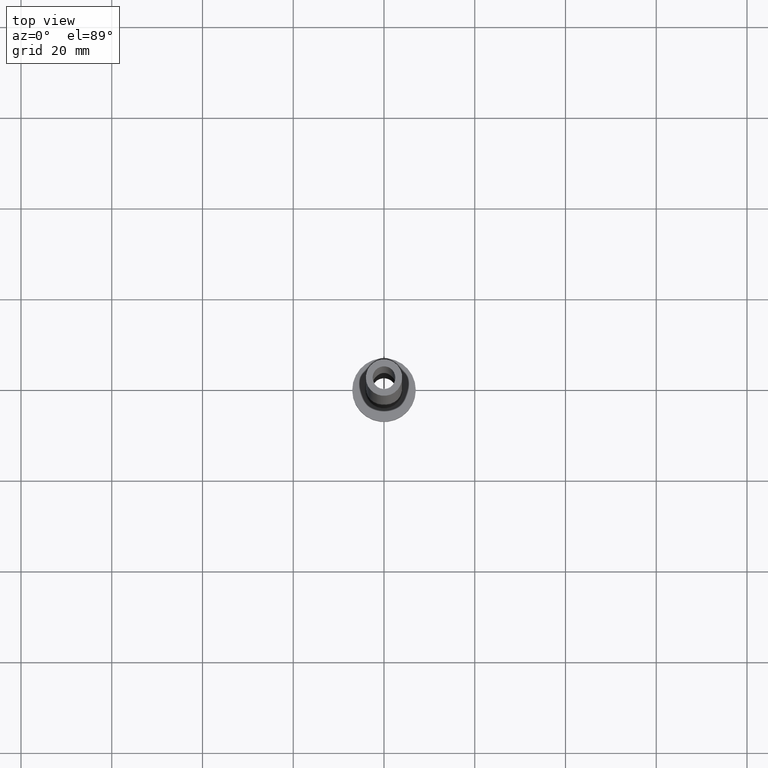
[diagram: clean part render]
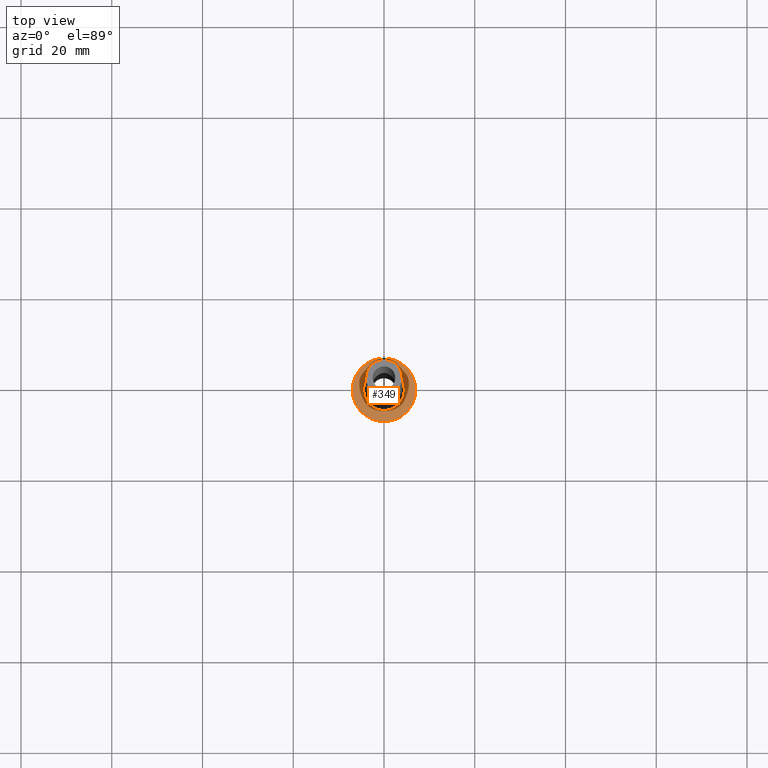
[diagram: same view with one face highlighted and labeled with its STEP entity id]
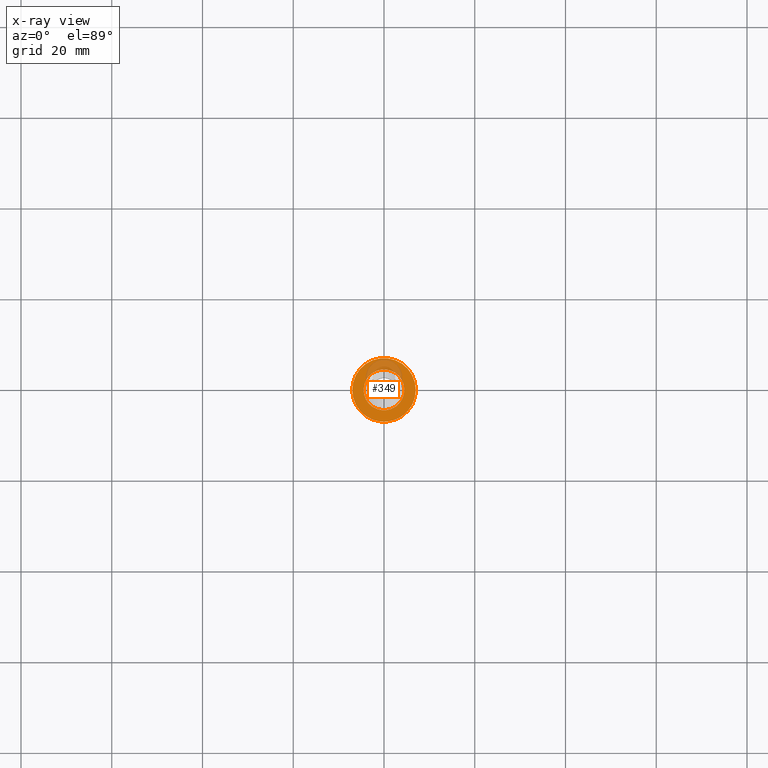
[diagram: x-ray of the same camera — body ghosted, the highlighted face saturated]
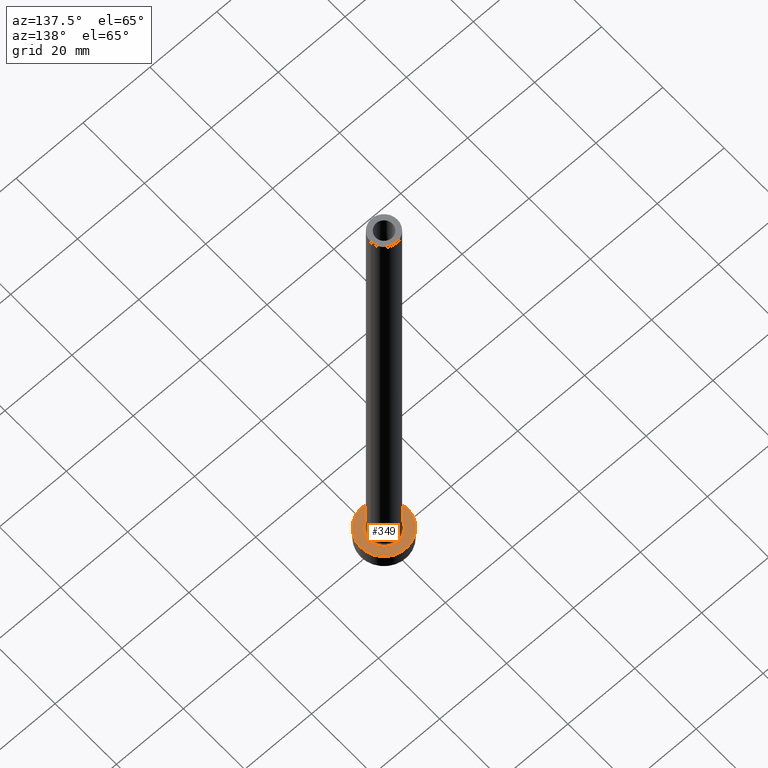
[diagram: same view with one face highlighted and labeled with its STEP entity id]
A machine part, top view. The second image highlights one B-rep face of the part: STEP entity #349.
The next image is the same camera in x-ray: the body ghosted, the highlighted face saturated — about 18% of this face is hidden behind the body in this view.
A second angle (auxiliary view) of the same face is appended — the face is thin or edge-on in the first view.
In plain terms, the highlighted planar face has unit normal (0, 0, 1).
Its self-contained STEP definition (entity closure, byte-faithful):
#5 = AXIS2_PLACEMENT_3D ( 'NONE', #44, #324, #288 ) ;
#9 = CARTESIAN_POINT ( 'NONE',  ( 4.500000000000000888, 0.000000000000000000, 5.000000000000002665 ) ) ;
#15 = PLANE ( 'NONE',  #19 ) ;
#19 = AXIS2_PLACEMENT_3D ( 'NONE', #437, #232, #83 ) ;
#43 = CIRCLE ( 'NONE', #372, 4.500000000000000888 ) ;
#44 = CARTESIAN_POINT ( 'NONE',  ( 0.000000000000000000, 0.000000000000000000, 5.000000000000000000 ) ) ;
#49 = CARTESIAN_POINT ( 'NONE',  ( 0.000000000000000000, 0.000000000000000000, 5.000000000000000000 ) ) ;
#55 = EDGE_CURVE ( 'NONE', #201, #203, #364, .T. ) ;
#63 = VERTEX_POINT ( 'NONE', #9 ) ;
#83 = DIRECTION ( 'NONE',  ( 1.000000000000000000, 0.000000000000000000, -0.000000000000000000 ) ) ;
#91 = CARTESIAN_POINT ( 'NONE',  ( 0.000000000000000000, 0.000000000000000000, 5.000000000000000000 ) ) ;
#93 = AXIS2_PLACEMENT_3D ( 'NONE', #91, #454, #206 ) ;
#119 = CARTESIAN_POINT ( 'NONE',  ( -7.000000000000000000, 0.000000000000000000, 5.000000000000000000 ) ) ;
#140 = ORIENTED_EDGE ( 'NONE', *, *, #444, .T. ) ;
#155 = CARTESIAN_POINT ( 'NONE',  ( -4.500000000000000888, 5.510910596163088569E-16, 5.000000000000002665 ) ) ;
#166 = DIRECTION ( 'NONE',  ( 1.000000000000000000, 0.000000000000000000, 0.000000000000000000 ) ) ;
#193 = DIRECTION ( 'NONE',  ( 1.000000000000000000, 0.000000000000000000, 0.000000000000000000 ) ) ;
#201 = VERTEX_POINT ( 'NONE', #336 ) ;
#203 = VERTEX_POINT ( 'NONE', #119 ) ;
#206 = DIRECTION ( 'NONE',  ( 1.000000000000000000, 0.000000000000000000, 0.000000000000000000 ) ) ;
#232 = DIRECTION ( 'NONE',  ( 0.000000000000000000, 0.000000000000000000, 1.000000000000000000 ) ) ;
#237 = ORIENTED_EDGE ( 'NONE', *, *, #383, .T. ) ;
#288 = DIRECTION ( 'NONE',  ( 1.000000000000000000, 0.000000000000000000, 0.000000000000000000 ) ) ;
#296 = CIRCLE ( 'NONE', #365, 7.000000000000000000 ) ;
#297 = FACE_OUTER_BOUND ( 'NONE', #418, .T. ) ;
#308 = ORIENTED_EDGE ( 'NONE', *, *, #367, .T. ) ;
#319 = CIRCLE ( 'NONE', #93, 4.500000000000000888 ) ;
#324 = DIRECTION ( 'NONE',  ( 0.000000000000000000, 0.000000000000000000, 1.000000000000000000 ) ) ;
#332 = ORIENTED_EDGE ( 'NONE', *, *, #55, .T. ) ;
#336 = CARTESIAN_POINT ( 'NONE',  ( 7.000000000000000000, 8.572527594031473190E-16, 5.000000000000000000 ) ) ;
#339 = DIRECTION ( 'NONE',  ( -0.000000000000000000, -0.000000000000000000, -1.000000000000000000 ) ) ;
#346 = VERTEX_POINT ( 'NONE', #155 ) ;
#349 = ADVANCED_FACE ( 'NONE', ( #376, #297 ), #15, .T. ) ;
#364 = CIRCLE ( 'NONE', #5, 7.000000000000000000 ) ;
#365 = AXIS2_PLACEMENT_3D ( 'NONE', #384, #447, #166 ) ;
#367 = EDGE_CURVE ( 'NONE', #63, #346, #43, .T. ) ;
#372 = AXIS2_PLACEMENT_3D ( 'NONE', #49, #339, #193 ) ;
#376 = FACE_BOUND ( 'NONE', #391, .T. ) ;
#383 = EDGE_CURVE ( 'NONE', #346, #63, #319, .T. ) ;
#384 = CARTESIAN_POINT ( 'NONE',  ( 0.000000000000000000, 0.000000000000000000, 5.000000000000000000 ) ) ;
#391 = EDGE_LOOP ( 'NONE', ( #308, #237 ) ) ;
#418 = EDGE_LOOP ( 'NONE', ( #140, #332 ) ) ;
#437 = CARTESIAN_POINT ( 'NONE',  ( 0.000000000000000000, 0.000000000000000000, 5.000000000000000000 ) ) ;
#444 = EDGE_CURVE ( 'NONE', #203, #201, #296, .T. ) ;
#447 = DIRECTION ( 'NONE',  ( 0.000000000000000000, 0.000000000000000000, 1.000000000000000000 ) ) ;
#454 = DIRECTION ( 'NONE',  ( -0.000000000000000000, -0.000000000000000000, -1.000000000000000000 ) ) ;